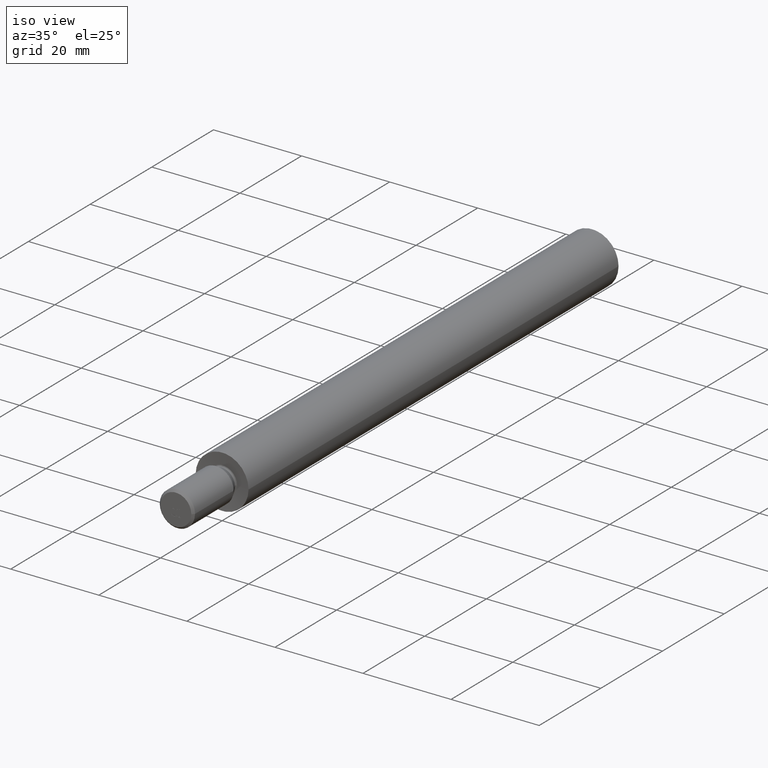
[diagram: clean part render]
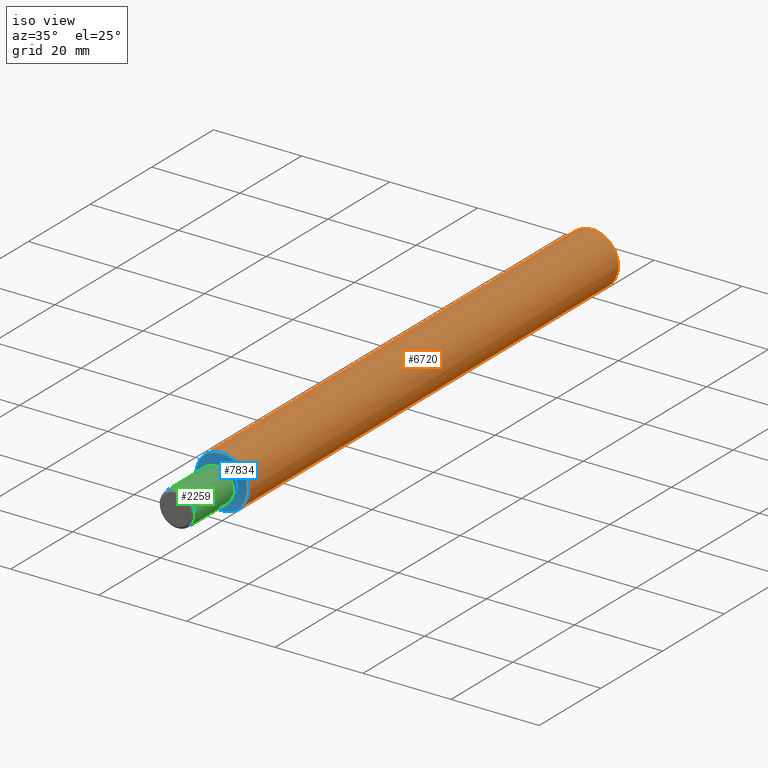
[diagram: same view with three faces highlighted in distinct colors, each labeled with its STEP entity id]
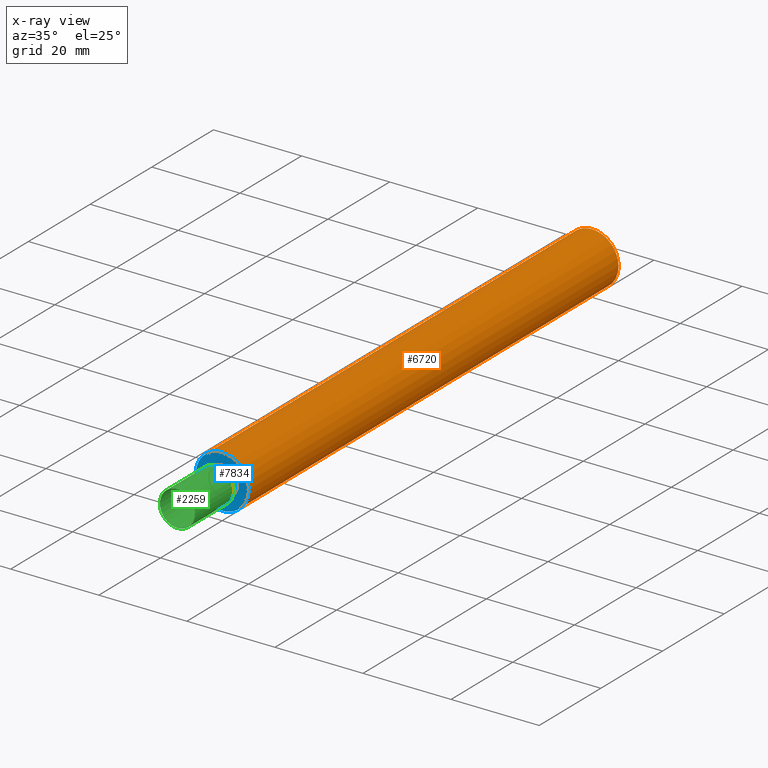
[diagram: x-ray of the same camera — body ghosted, the three highlighted faces saturated]
A machine part, iso view with three faces highlighted in distinct colors.
The next image is the same camera in x-ray (body ghosted, the three faces saturated) — at least one of them is partly hidden behind the body in this view.
Their STEP definitions:

[orange] entity #6720 — the highlighted cylindrical surface (bore or boss wall) has radius 6 mm, axis along (0, -1, -0).
#2 = CARTESIAN_POINT ( 'NONE',  ( 1.711937728344209696E-31, 0.000000000000000000, 0.000000000000000000 ) ) ;
#553 = ORIENTED_EDGE ( 'NONE', *, *, #4210, .F. ) ;
#1004 = VERTEX_POINT ( 'NONE', #12616 ) ;
#1022 = CYLINDRICAL_SURFACE ( 'NONE', #1576, 6.000000000000000000 ) ;
#1576 = AXIS2_PLACEMENT_3D ( 'NONE', #6994, #10497, #9206 ) ;
#3511 = FACE_OUTER_BOUND ( 'NONE', #13023, .T. ) ;
#3772 = DIRECTION ( 'NONE',  ( 1.426614773620174541E-33, -1.000000000000000000, -0.000000000000000000 ) ) ;
#4210 = EDGE_CURVE ( 'NONE', #1004, #1004, #9228, .T. ) ;
#4794 = AXIS2_PLACEMENT_3D ( 'NONE', #13806, #3772, #13853 ) ;
#4833 = CIRCLE ( 'NONE', #4794, 5.999999999999991118 ) ;
#5236 = VERTEX_POINT ( 'NONE', #8134 ) ;
#5488 = DIRECTION ( 'NONE',  ( 1.426614773620174541E-33, -1.000000000000000000, -0.000000000000000000 ) ) ;
#6720 = ADVANCED_FACE ( 'NONE', ( #3511, #7030 ), #1022, .T. ) ;
#6994 = CARTESIAN_POINT ( 'NONE',  ( 1.925929944387235853E-31, -15.00000000000000000, 0.000000000000000000 ) ) ;
#7030 = FACE_OUTER_BOUND ( 'NONE', #11521, .T. ) ;
#8094 = AXIS2_PLACEMENT_3D ( 'NONE', #2, #5488, #8988 ) ;
#8134 = CARTESIAN_POINT ( 'NONE',  ( 5.999999999999991118, 120.0000000000000142, 0.000000000000000000 ) ) ;
#8988 = DIRECTION ( 'NONE',  ( 1.000000000000000000, 1.426614773620174370E-33, 0.000000000000000000 ) ) ;
#9206 = DIRECTION ( 'NONE',  ( 1.000000000000000000, 0.000000000000000000, 0.000000000000000000 ) ) ;
#9228 = CIRCLE ( 'NONE', #8094, 6.000000000000009770 ) ;
#10497 = DIRECTION ( 'NONE',  ( 1.426614773620174541E-33, -1.000000000000000000, -0.000000000000000000 ) ) ;
#10921 = EDGE_CURVE ( 'NONE', #5236, #5236, #4833, .T. ) ;
#11521 = EDGE_LOOP ( 'NONE', ( #553 ) ) ;
#12616 = CARTESIAN_POINT ( 'NONE',  ( 6.000000000000009770, 8.559688641721060248E-33, 0.000000000000000000 ) ) ;
#13023 = EDGE_LOOP ( 'NONE', ( #14307 ) ) ;
#13806 = CARTESIAN_POINT ( 'NONE',  ( 0.000000000000000000, 120.0000000000000142, 0.000000000000000000 ) ) ;
#13853 = DIRECTION ( 'NONE',  ( 1.000000000000000000, 0.000000000000000000, 0.000000000000000000 ) ) ;
#14307 = ORIENTED_EDGE ( 'NONE', *, *, #10921, .T. ) ;

[blue] entity #7834 — the highlighted conical surface has half-angle 85 deg.
#2 = CARTESIAN_POINT ( 'NONE',  ( 1.711937728344209696E-31, 0.000000000000000000, 0.000000000000000000 ) ) ;
#1004 = VERTEX_POINT ( 'NONE', #12616 ) ;
#1362 = ORIENTED_EDGE ( 'NONE', *, *, #4210, .T. ) ;
#1853 = AXIS2_PLACEMENT_3D ( 'NONE', #9687, #12072, #14301 ) ;
#3174 = CONICAL_SURFACE ( 'NONE', #7251, 3.320072066050799187, 1.483529864195179737 ) ;
#3411 = CARTESIAN_POINT ( 'NONE',  ( 3.320072066050799187, 0.2344633132870081738, 0.000000000000000000 ) ) ;
#4210 = EDGE_CURVE ( 'NONE', #1004, #1004, #9228, .T. ) ;
#4345 = DIRECTION ( 'NONE',  ( 1.426614773620174541E-33, -1.000000000000000000, -0.000000000000000000 ) ) ;
#4985 = FACE_BOUND ( 'NONE', #13896, .T. ) ;
#5376 = CARTESIAN_POINT ( 'NONE',  ( 1.708592840078137828E-31, 0.2344633132870081738, 0.000000000000000000 ) ) ;
#5488 = DIRECTION ( 'NONE',  ( 1.426614773620174541E-33, -1.000000000000000000, -0.000000000000000000 ) ) ;
#5816 = EDGE_CURVE ( 'NONE', #10734, #10734, #13467, .T. ) ;
#7251 = AXIS2_PLACEMENT_3D ( 'NONE', #5376, #4345, #11192 ) ;
#7679 = ORIENTED_EDGE ( 'NONE', *, *, #5816, .F. ) ;
#7834 = ADVANCED_FACE ( 'NONE', ( #13134, #4985 ), #3174, .F. ) ;
#8094 = AXIS2_PLACEMENT_3D ( 'NONE', #2, #5488, #8988 ) ;
#8988 = DIRECTION ( 'NONE',  ( 1.000000000000000000, 1.426614773620174370E-33, 0.000000000000000000 ) ) ;
#9228 = CIRCLE ( 'NONE', #8094, 6.000000000000009770 ) ;
#9687 = CARTESIAN_POINT ( 'NONE',  ( 1.708592840078137828E-31, 0.2344633132870081738, 0.000000000000000000 ) ) ;
#10682 = EDGE_LOOP ( 'NONE', ( #1362 ) ) ;
#10734 = VERTEX_POINT ( 'NONE', #3411 ) ;
#11192 = DIRECTION ( 'NONE',  ( 1.000000000000000000, 0.000000000000000000, 0.000000000000000000 ) ) ;
#12072 = DIRECTION ( 'NONE',  ( 1.426614773620174541E-33, -1.000000000000000000, -0.000000000000000000 ) ) ;
#12616 = CARTESIAN_POINT ( 'NONE',  ( 6.000000000000009770, 8.559688641721060248E-33, 0.000000000000000000 ) ) ;
#13134 = FACE_OUTER_BOUND ( 'NONE', #10682, .T. ) ;
#13467 = CIRCLE ( 'NONE', #1853, 3.320072066050799187 ) ;
#13896 = EDGE_LOOP ( 'NONE', ( #7679 ) ) ;
#14301 = DIRECTION ( 'NONE',  ( 1.000000000000000000, 0.000000000000000000, 0.000000000000000000 ) ) ;

[green] entity #2259 — the highlighted cylindrical surface (bore or boss wall) has radius 4 mm, axis along (0, -1, -0).
#151 = CARTESIAN_POINT ( 'NONE',  ( 4.000000000000000000, -2.000000000000000000, 0.000000000000000000 ) ) ;
#680 = CARTESIAN_POINT ( 'NONE',  ( 1.918796870519134558E-31, -14.49999999999997513, 0.000000000000000000 ) ) ;
#1443 = CIRCLE ( 'NONE', #7706, 4.000000000000000888 ) ;
#2259 = ADVANCED_FACE ( 'NONE', ( #7825, #5528 ), #4313, .T. ) ;
#2679 = CARTESIAN_POINT ( 'NONE',  ( 1.925929944387235853E-31, -15.00000000000000000, 0.000000000000000000 ) ) ;
#2749 = EDGE_LOOP ( 'NONE', ( #9711 ) ) ;
#3942 = CIRCLE ( 'NONE', #8753, 4.000000000000000000 ) ;
#4031 = VERTEX_POINT ( 'NONE', #151 ) ;
#4313 = CYLINDRICAL_SURFACE ( 'NONE', #11217, 4.000000000000000888 ) ;
#5025 = DIRECTION ( 'NONE',  ( 1.000000000000000000, 0.000000000000000000, 0.000000000000000000 ) ) ;
#5528 = FACE_OUTER_BOUND ( 'NONE', #2749, .T. ) ;
#5847 = CARTESIAN_POINT ( 'NONE',  ( 1.740470023816613125E-31, -2.000000000000000000, 0.000000000000000000 ) ) ;
#7706 = AXIS2_PLACEMENT_3D ( 'NONE', #680, #10758, #10844 ) ;
#7825 = FACE_OUTER_BOUND ( 'NONE', #11783, .T. ) ;
#8071 = DIRECTION ( 'NONE',  ( 1.000000000000000000, 0.000000000000000000, 0.000000000000000000 ) ) ;
#8753 = AXIS2_PLACEMENT_3D ( 'NONE', #5847, #13772, #8071 ) ;
#9446 = EDGE_CURVE ( 'NONE', #13208, #13208, #1443, .T. ) ;
#9711 = ORIENTED_EDGE ( 'NONE', *, *, #11683, .T. ) ;
#10758 = DIRECTION ( 'NONE',  ( -1.426614773620170436E-33, 1.000000000000000000, 0.000000000000000000 ) ) ;
#10804 = DIRECTION ( 'NONE',  ( 1.426614773620174541E-33, -1.000000000000000000, -0.000000000000000000 ) ) ;
#10844 = DIRECTION ( 'NONE',  ( 1.000000000000000000, 0.000000000000000000, 0.000000000000000000 ) ) ;
#11217 = AXIS2_PLACEMENT_3D ( 'NONE', #2679, #10804, #5025 ) ;
#11405 = CARTESIAN_POINT ( 'NONE',  ( 4.000000000000000888, -14.49999999999997513, 0.000000000000000000 ) ) ;
#11683 = EDGE_CURVE ( 'NONE', #4031, #4031, #3942, .T. ) ;
#11783 = EDGE_LOOP ( 'NONE', ( #13920 ) ) ;
#13208 = VERTEX_POINT ( 'NONE', #11405 ) ;
#13772 = DIRECTION ( 'NONE',  ( 1.426614773620174541E-33, -1.000000000000000000, -0.000000000000000000 ) ) ;
#13920 = ORIENTED_EDGE ( 'NONE', *, *, #9446, .T. ) ;